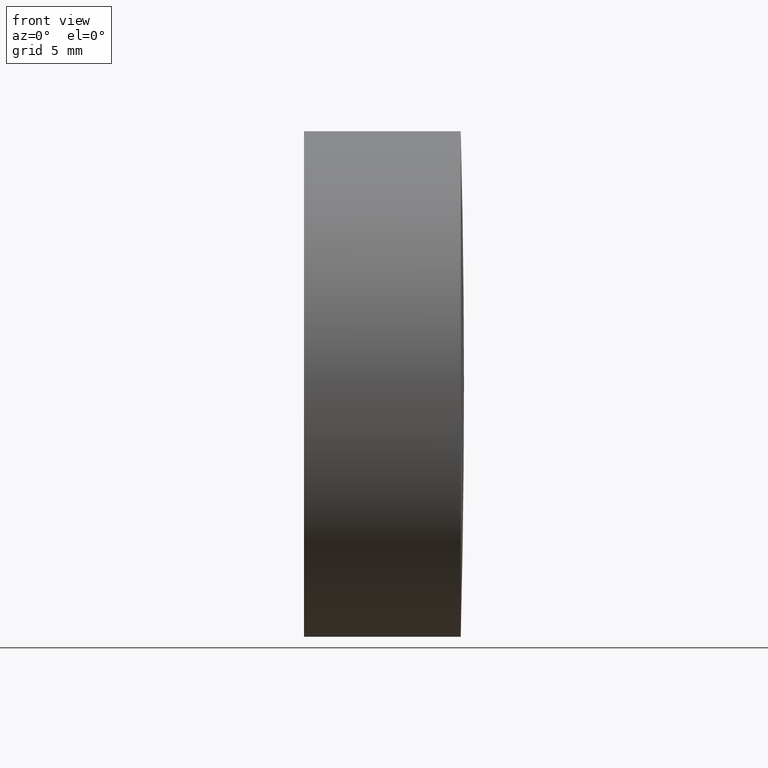
[diagram: clean part render]
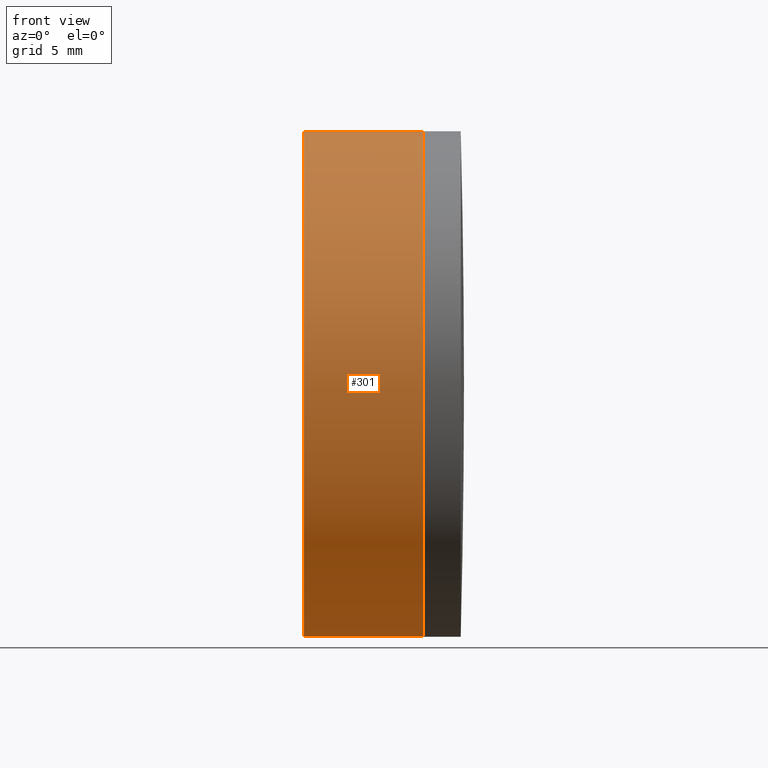
[diagram: same view with one face highlighted and labeled with its STEP entity id]
A machine part, front view. The second image highlights one B-rep face of the part: STEP entity #301.
In plain terms, the highlighted cylindrical surface (partial cylindrical patch) has radius 12.7 mm, axis along (-1, -0, 0).
Its self-contained STEP definition (entity closure, byte-faithful):
#1 = CARTESIAN_POINT ( 'NONE',  ( 144.4937671120052900, 1.555301434917136300E-015, -12.70000000000005300 ) ) ;
#16 = LINE ( 'NONE', #99, #283 ) ;
#20 = DIRECTION ( 'NONE',  ( -1.000000000000000000, -0.0000000000000000000, 2.184929092829751300E-016 ) ) ;
#23 = CARTESIAN_POINT ( 'NONE',  ( 150.5048937077423800, 1.555301434917137400E-015, -12.70000000000004400 ) ) ;
#27 = FACE_OUTER_BOUND ( 'NONE', #343, .T. ) ;
#37 = ORIENTED_EDGE ( 'NONE', *, *, #40, .T. ) ;
#40 = EDGE_CURVE ( 'NONE', #304, #208, #256, .T. ) ;
#51 = DIRECTION ( 'NONE',  ( -1.000000000000000000, -0.0000000000000000000, 2.184929092829751300E-016 ) ) ;
#54 = CARTESIAN_POINT ( 'NONE',  ( 144.4937671120052900, 0.0000000000000000000, 12.69999999999993400 ) ) ;
#67 = DIRECTION ( 'NONE',  ( -1.000000000000000000, -0.0000000000000000000, 2.184929092829751300E-016 ) ) ;
#69 = CYLINDRICAL_SURFACE ( 'NONE', #300, 12.69999999999999000 ) ;
#99 = CARTESIAN_POINT ( 'NONE',  ( -185.2744740506581700, 0.0000000000000000000, 12.70000000000001200 ) ) ;
#103 = CARTESIAN_POINT ( 'NONE',  ( 150.5048937077423800, 0.0000000000000000000, 12.69999999999993900 ) ) ;
#113 = DIRECTION ( 'NONE',  ( -1.000000000000000000, -0.0000000000000000000, 2.184929092829751300E-016 ) ) ;
#117 = ORIENTED_EDGE ( 'NONE', *, *, #281, .F. ) ;
#138 = CARTESIAN_POINT ( 'NONE',  ( 144.4937671120052900, 0.0000000000000000000, -5.153169634145900400E-014 ) ) ;
#142 = EDGE_CURVE ( 'NONE', #304, #337, #188, .T. ) ;
#148 = ORIENTED_EDGE ( 'NONE', *, *, #142, .F. ) ;
#149 = VERTEX_POINT ( 'NONE', #54 ) ;
#188 = LINE ( 'NONE', #323, #238 ) ;
#204 = AXIS2_PLACEMENT_3D ( 'NONE', #297, #113, #315 ) ;
#207 = AXIS2_PLACEMENT_3D ( 'NONE', #138, #67, #253 ) ;
#208 = VERTEX_POINT ( 'NONE', #103 ) ;
#222 = DIRECTION ( 'NONE',  ( -1.000000000000000000, -0.0000000000000000000, 2.184929092829751300E-016 ) ) ;
#238 = VECTOR ( 'NONE', #222, 1000.000000000000000 ) ;
#242 = EDGE_CURVE ( 'NONE', #208, #149, #16, .T. ) ;
#251 = CIRCLE ( 'NONE', #207, 12.69999999999999000 ) ;
#253 = DIRECTION ( 'NONE',  ( 0.0000000000000000000, 0.0000000000000000000, 1.000000000000000000 ) ) ;
#256 = CIRCLE ( 'NONE', #204, 12.69999999999999000 ) ;
#281 = EDGE_CURVE ( 'NONE', #337, #149, #251, .T. ) ;
#283 = VECTOR ( 'NONE', #20, 1000.000000000000000 ) ;
#296 = CARTESIAN_POINT ( 'NONE',  ( -185.2744740506581700, 0.0000000000000000000, 2.052032605930108700E-014 ) ) ;
#297 = CARTESIAN_POINT ( 'NONE',  ( 150.5048937077423800, 0.0000000000000000000, -5.284508487942986600E-014 ) ) ;
#300 = AXIS2_PLACEMENT_3D ( 'NONE', #296, #51, #345 ) ;
#301 = ADVANCED_FACE ( 'NONE', ( #27 ), #69, .T. ) ;
#304 = VERTEX_POINT ( 'NONE', #23 ) ;
#313 = ORIENTED_EDGE ( 'NONE', *, *, #242, .T. ) ;
#315 = DIRECTION ( 'NONE',  ( 0.0000000000000000000, 0.0000000000000000000, 1.000000000000000000 ) ) ;
#323 = CARTESIAN_POINT ( 'NONE',  ( -185.2744740506581700, 1.555301434917137400E-015, -12.69999999999997100 ) ) ;
#337 = VERTEX_POINT ( 'NONE', #1 ) ;
#343 = EDGE_LOOP ( 'NONE', ( #148, #37, #313, #117 ) ) ;
#345 = DIRECTION ( 'NONE',  ( 0.0000000000000000000, 0.0000000000000000000, 1.000000000000000000 ) ) ;